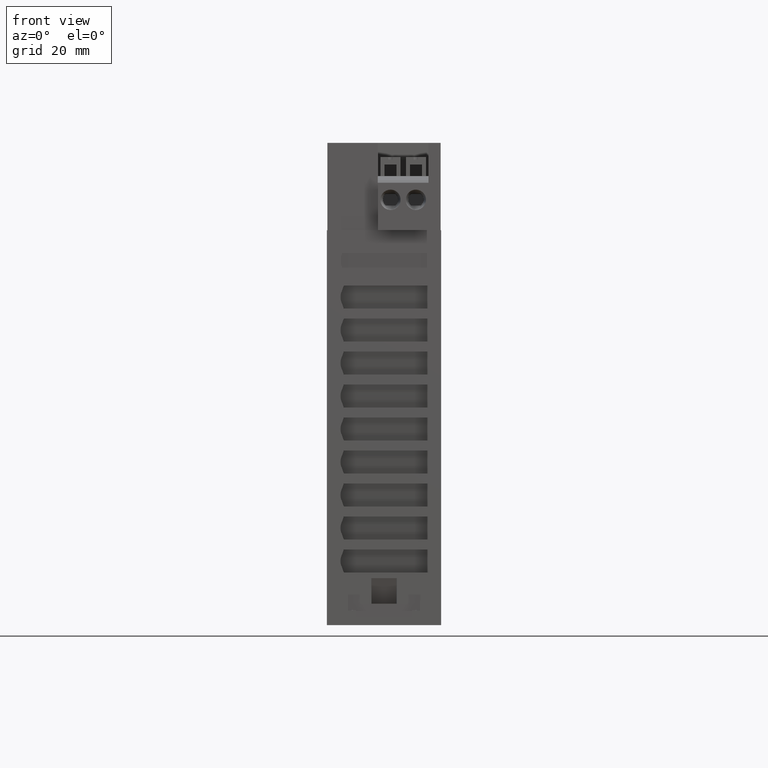
[diagram: clean part render]
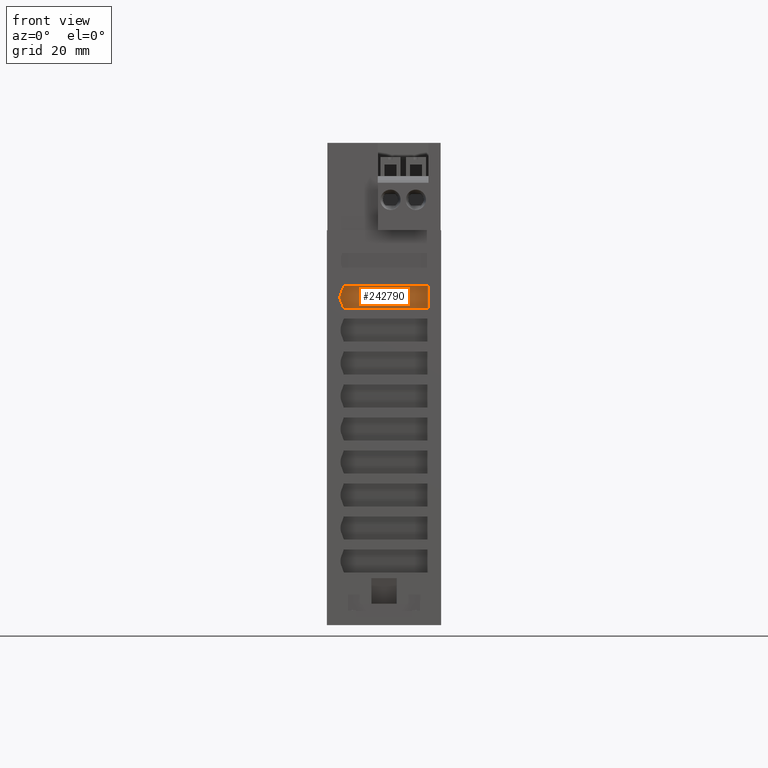
[diagram: same view with one face highlighted and labeled with its STEP entity id]
A machine part, front view. The second image highlights one B-rep face of the part: STEP entity #242790.
In plain terms, the highlighted planar face has unit normal (0, 1, 0.0087).
Its self-contained STEP definition (entity closure, byte-faithful):
#136350=CARTESIAN_POINT('',(12.08487880955,71.8,-47.6));
#136360=DIRECTION('',(-0.,0.00872653549837375,0.999961923064171));
#136370=DIRECTION('',(1.,0.,0.));
#136380=AXIS2_PLACEMENT_3D('',#136350,#136360,#136370);
#136390=PLANE('',#136380);
#241930=CARTESIAN_POINT('',(8.75000000000002,58.5999999999999,
-47.484805345162));
#241940=VERTEX_POINT('',#241930);
#241970=CARTESIAN_POINT('',(13.5544070923144,71.8,-47.6));
#241980=DIRECTION('',(0.342008643580674,0.939661025496111,
-0.00820029753763322));
#241990=VECTOR('',#241980,1.);
#242000=LINE('',#241970,#241990);
#242010=CARTESIAN_POINT('',(7.931066972901,56.35,-47.4651698926328));
#242020=VERTEX_POINT('',#242010);
#242030=EDGE_CURVE('',#242020,#241940,#242000,.T.);
#242310=CARTESIAN_POINT('',(7.93106697290096,60.85,-47.5044407976912));
#242320=VERTEX_POINT('',#242310);
#242350=CARTESIAN_POINT('',(3.94559290768565,71.8,-47.6));
#242360=DIRECTION('',(-0.342008643580674,0.939661025496111,
-0.00820029753763322));
#242370=VECTOR('',#242360,1.);
#242380=LINE('',#242350,#242370);
#242390=EDGE_CURVE('',#241940,#242320,#242380,.T.);
#242530=ORIENTED_EDGE('',*,*,#242390,.F.);
#242540=CARTESIAN_POINT('',(0.,60.85,-47.5044407976912));
#242550=DIRECTION('',(-1.,0.,0.));
#242560=VECTOR('',#242550,1.);
#242570=LINE('',#242540,#242560);
#242580=CARTESIAN_POINT('',(-8.75,60.85,-47.5044407976912));
#242590=VERTEX_POINT('',#242580);
#242600=EDGE_CURVE('',#242320,#242590,#242570,.T.);
#242610=ORIENTED_EDGE('',*,*,#242600,.F.);
#242620=CARTESIAN_POINT('',(-8.75,71.8,-47.6));
#242630=DIRECTION('',(8.67361737988404E-19,-0.999961923064171,
0.00872653549837375));
#242640=VECTOR('',#242630,1.);
#242650=LINE('',#242620,#242640);
#242660=CARTESIAN_POINT('',(-8.75,56.35,-47.4651698926328));
#242670=VERTEX_POINT('',#242660);
#242680=EDGE_CURVE('',#242590,#242670,#242650,.T.);
#242690=ORIENTED_EDGE('',*,*,#242680,.F.);
#242700=CARTESIAN_POINT('',(0.,56.35,-47.4651698926328));
#242710=DIRECTION('',(1.,0.,0.));
#242720=VECTOR('',#242710,1.);
#242730=LINE('',#242700,#242720);
#242740=EDGE_CURVE('',#242670,#242020,#242730,.T.);
#242750=ORIENTED_EDGE('',*,*,#242740,.F.);
#242760=ORIENTED_EDGE('',*,*,#242030,.F.);
#242770=EDGE_LOOP('',(#242760,#242750,#242690,#242610,#242530));
#242780=FACE_OUTER_BOUND('',#242770,.T.);
#242790=ADVANCED_FACE('',(#242780),#136390,.F.);